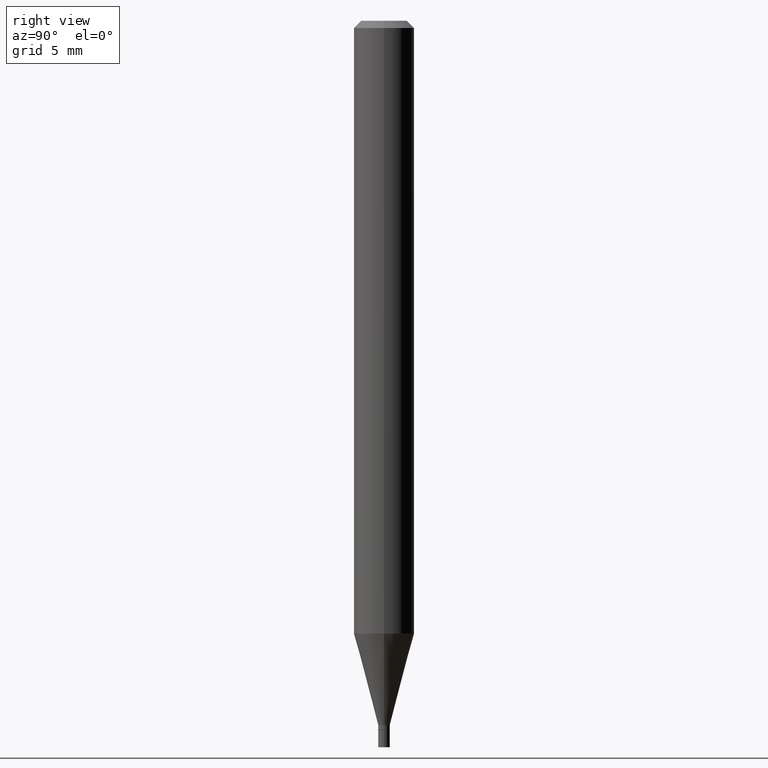
[diagram: clean part render]
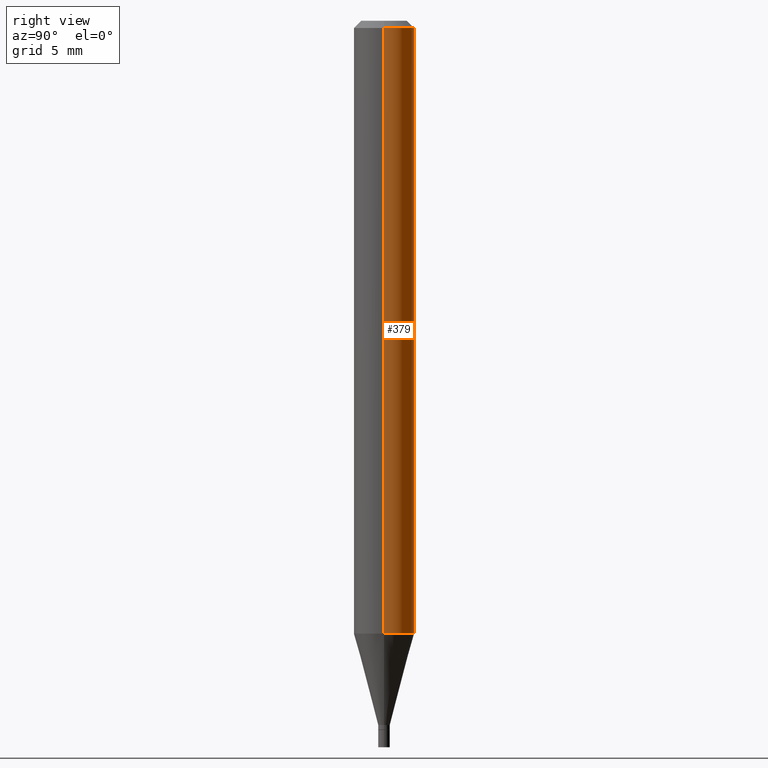
[diagram: same view with one face highlighted and labeled with its STEP entity id]
A machine part, right view. The second image highlights one B-rep face of the part: STEP entity #379.
In plain terms, the highlighted cylindrical surface (edge-blend (fillet) strip) has radius 1.5875 mm, axis along (-0, 0, 1).
Its self-contained STEP definition (entity closure, byte-faithful):
#3 = VERTEX_POINT ( 'NONE', #265 ) ;
#16 = VERTEX_POINT ( 'NONE', #283 ) ;
#21 = CIRCLE ( 'NONE', #366, 0.06250000000000000000 ) ;
#75 = EDGE_CURVE ( 'NONE', #16, #3, #363, .T. ) ;
#98 = VECTOR ( 'NONE', #316, 39.37007874015748143 ) ;
#101 = VERTEX_POINT ( 'NONE', #210 ) ;
#118 = AXIS2_PLACEMENT_3D ( 'NONE', #416, #373, #199 ) ;
#148 = FACE_OUTER_BOUND ( 'NONE', #376, .T. ) ;
#163 = ORIENTED_EDGE ( 'NONE', *, *, #75, .T. ) ;
#172 = DIRECTION ( 'NONE',  ( -2.445468806185136597E-29, 3.491481338843145583E-15, 1.000000000000000000 ) ) ;
#176 = CARTESIAN_POINT ( 'NONE',  ( 0.06250000000000000000, -4.364351673553916694E-16, 3.047610484872459871E-30 ) ) ;
#181 = DIRECTION ( 'NONE',  ( -2.445468806185136877E-29, 3.491481338843145188E-15, 1.000000000000000000 ) ) ;
#199 = DIRECTION ( 'NONE',  ( 1.000000000000000000, -6.982962677686262766E-15, 0.000000000000000000 ) ) ;
#203 = VECTOR ( 'NONE', #181, 39.37007874015748143 ) ;
#210 = CARTESIAN_POINT ( 'NONE',  ( 0.06250000000000000000, -4.888073874380388472E-16, -0.01499999999999999944 ) ) ;
#214 = DIRECTION ( 'NONE',  ( -2.445468806185136597E-29, 3.491481338843145583E-15, 1.000000000000000000 ) ) ;
#218 = DIRECTION ( 'NONE',  ( 1.000000000000000000, -6.982962677686266711E-15, 4.876176775795935793E-29 ) ) ;
#231 = VERTEX_POINT ( 'NONE', #324 ) ;
#233 = ORIENTED_EDGE ( 'NONE', *, *, #371, .F. ) ;
#240 = CYLINDRICAL_SURFACE ( 'NONE', #385, 0.06250000000000000000 ) ;
#255 = CARTESIAN_POINT ( 'NONE',  ( -0.06250000000000000000, 4.440892098500626162E-16, -3.074334431409316114E-30 ) ) ;
#265 = CARTESIAN_POINT ( 'NONE',  ( -0.06250000000000000000, -1.791386593336637406E-15, -0.01499999999999999944 ) ) ;
#279 = EDGE_CURVE ( 'NONE', #231, #16, #315, .T. ) ;
#283 = CARTESIAN_POINT ( 'NONE',  ( -0.06250000000000000000, -3.974490176440689955E-15, -1.265531434217771922 ) ) ;
#315 = CIRCLE ( 'NONE', #118, 0.06250000000000000000 ) ;
#316 = DIRECTION ( 'NONE',  ( -2.445468806185136877E-29, 3.491481338843145188E-15, 1.000000000000000000 ) ) ;
#324 = CARTESIAN_POINT ( 'NONE',  ( 0.06250000000000000000, -4.855014553646144241E-15, -1.265531434217771922 ) ) ;
#340 = ORIENTED_EDGE ( 'NONE', *, *, #446, .F. ) ;
#363 = LINE ( 'NONE', #255, #203 ) ;
#366 = AXIS2_PLACEMENT_3D ( 'NONE', #395, #214, #465 ) ;
#371 = EDGE_CURVE ( 'NONE', #101, #3, #21, .T. ) ;
#373 = DIRECTION ( 'NONE',  ( -2.445468806185136597E-29, 3.491481338843145583E-15, 1.000000000000000000 ) ) ;
#376 = EDGE_LOOP ( 'NONE', ( #450, #163, #233, #340 ) ) ;
#379 = ADVANCED_FACE ( 'NONE', ( #148 ), #240, .T. ) ;
#385 = AXIS2_PLACEMENT_3D ( 'NONE', #422, #172, #218 ) ;
#395 = CARTESIAN_POINT ( 'NONE',  ( 3.668203209277705088E-31, -5.237222008264718399E-17, -0.01499999999999999944 ) ) ;
#416 = CARTESIAN_POINT ( 'NONE',  ( 3.094817645626298552E-29, -4.418579386290752571E-15, -1.265531434217771922 ) ) ;
#422 = CARTESIAN_POINT ( 'NONE',  ( 0.000000000000000000, 0.000000000000000000, 0.000000000000000000 ) ) ;
#446 = EDGE_CURVE ( 'NONE', #231, #101, #464, .T. ) ;
#450 = ORIENTED_EDGE ( 'NONE', *, *, #279, .T. ) ;
#464 = LINE ( 'NONE', #176, #98 ) ;
#465 = DIRECTION ( 'NONE',  ( 1.000000000000000000, -6.982962677686266711E-15, 0.000000000000000000 ) ) ;